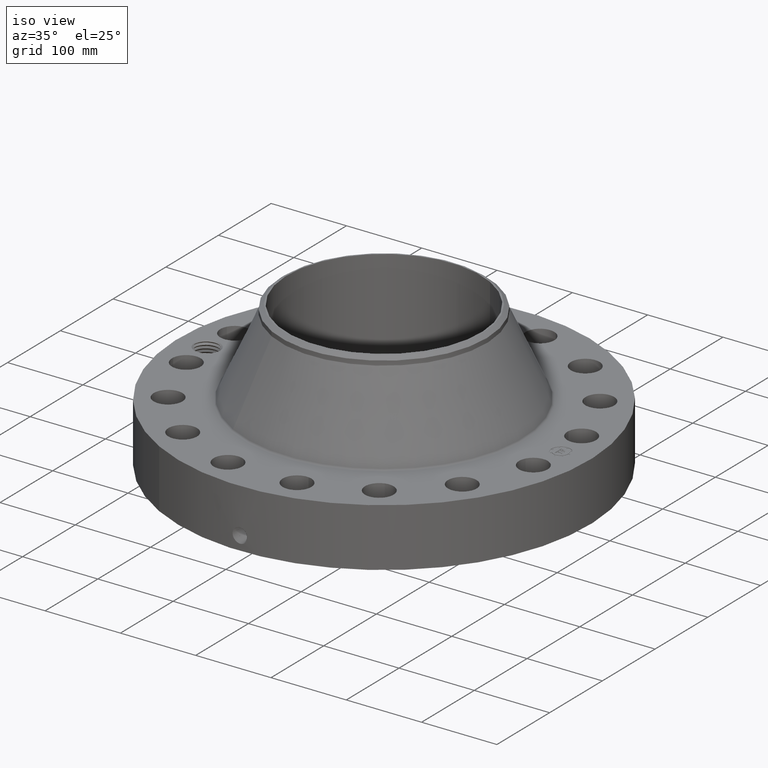
[diagram: clean part render]
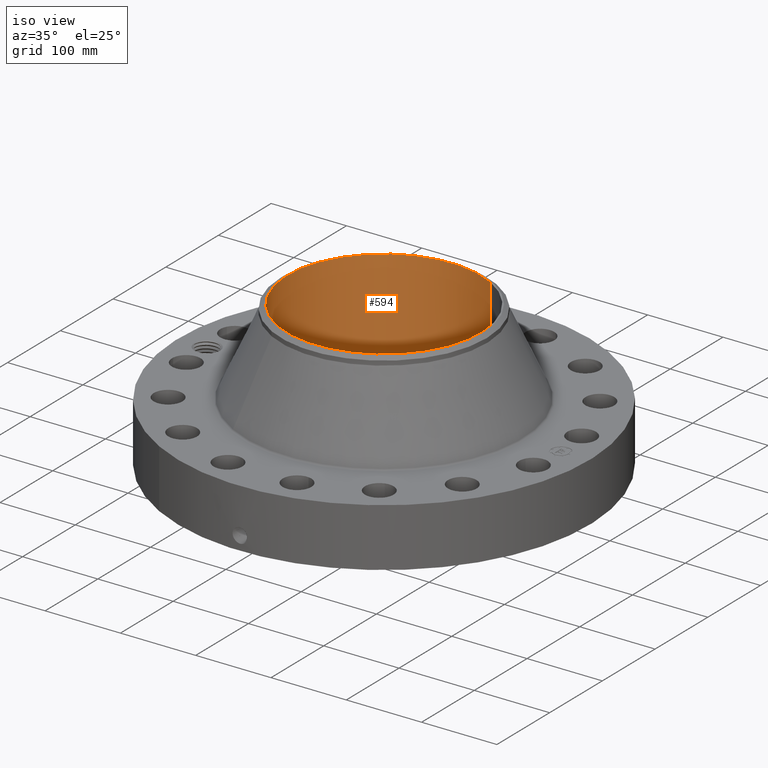
[diagram: same view with one face highlighted and labeled with its STEP entity id]
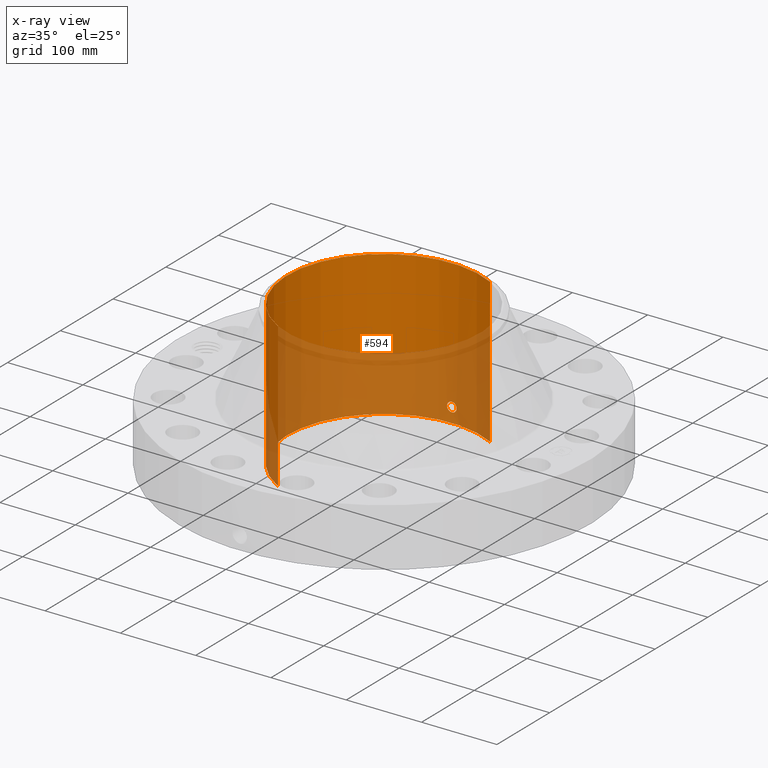
[diagram: x-ray of the same camera — body ghosted, the highlighted face saturated]
A machine part, iso view. The second image highlights one B-rep face of the part: STEP entity #594.
The next image is the same camera in x-ray: the body ghosted, the highlighted face saturated — about 47% of this face is hidden behind the body in this view.
In plain terms, the highlighted cylindrical surface (partial cylindrical patch) has radius 128.727 mm, axis along (0, 0, -1).
Its self-contained STEP definition (entity closure, byte-faithful):
#232=AXIS2_PLACEMENT_3D('Cylinder Axis2P3D',#229,#230,#231) ;
#533=AXIS2_PLACEMENT_3D('Circle Axis2P3D',#531,#532,$) ;
#543=AXIS2_PLACEMENT_3D('Circle Axis2P3D',#541,#542,$) ;
#229=CARTESIAN_POINT('Axis2P3D Location',(0.,0.,3.78100000002)) ;
#238=CARTESIAN_POINT('Vertex',(2.42972862966,4.44758842368,7.56200000003)) ;
#240=CARTESIAN_POINT('Vertex',(-2.42972862966,-4.44758842368,7.56200000003)) ;
#243=CARTESIAN_POINT('Line Origine',(2.42972862966,4.44758842368,3.78100000002)) ;
#247=CARTESIAN_POINT('Vertex',(2.42972862966,4.44758842368,-1.51060266658E-014)) ;
#254=CARTESIAN_POINT('Vertex',(-2.42972862966,-4.44758842368,-1.51060266658E-014)) ;
#257=CARTESIAN_POINT('Line Origine',(-2.42972862966,-4.44758842368,3.78100000002)) ;
#531=CARTESIAN_POINT('Axis2P3D Location',(0.,0.,7.56200000003)) ;
#541=CARTESIAN_POINT('Axis2P3D Location',(0.,0.,-1.56655091349E-014)) ;
#553=CARTESIAN_POINT('Control Point',(0.219395640473,5.06324891282,0.869856384655)) ;
#554=CARTESIAN_POINT('Control Point',(0.206921719486,5.06378942029,0.892689743864)) ;
#555=CARTESIAN_POINT('Control Point',(0.191478259971,5.06442011497,0.913898680403)) ;
#556=CARTESIAN_POINT('Control Point',(0.173345217386,5.06509226609,0.932970239007)) ;
#557=CARTESIAN_POINT('Control Point',(0.112136795125,5.06703633096,0.98244893639)) ;
#558=CARTESIAN_POINT('Control Point',(0.0349822800514,5.06829938306,1.00597344248)) ;
#559=CARTESIAN_POINT('Control Point',(-0.019559894261,5.06839375583,1.00761228124)) ;
#560=CARTESIAN_POINT('Control Point',(-0.124145130375,5.06700352883,0.982470155229)) ;
#561=CARTESIAN_POINT('Control Point',(-0.203189946635,5.06412590489,0.909559205837)) ;
#562=CARTESIAN_POINT('Control Point',(-0.232166968363,5.06270914309,0.863344552312)) ;
#563=CARTESIAN_POINT('Control Point',(-0.25583323828,5.06154277102,0.785188263653)) ;
#564=CARTESIAN_POINT('Control Point',(-0.248295655353,5.0619139393,0.705799642855)) ;
#565=CARTESIAN_POINT('Control Point',(-0.24206157261,5.06222543809,0.679216522199)) ;
#566=CARTESIAN_POINT('Control Point',(-0.232323388934,5.06268874054,0.653807700177)) ;
#567=CARTESIAN_POINT('Control Point',(-0.219395640473,5.06324891282,0.630143615351)) ;
#568=CARTESIAN_POINT('Vertex',(0.219395640473,5.06324891282,0.869856384655)) ;
#570=CARTESIAN_POINT('Vertex',(-0.219395640473,5.06324891282,0.630143615351)) ;
#574=CARTESIAN_POINT('Control Point',(-0.219395640473,5.06324891282,0.630143615351)) ;
#575=CARTESIAN_POINT('Control Point',(-0.206921719499,5.06378942029,0.607310256167)) ;
#576=CARTESIAN_POINT('Control Point',(-0.191478260005,5.06442011497,0.586101319649)) ;
#577=CARTESIAN_POINT('Control Point',(-0.173345217343,5.0650922661,0.567029760965)) ;
#578=CARTESIAN_POINT('Control Point',(-0.112136795101,5.06703633096,0.51755106361)) ;
#579=CARTESIAN_POINT('Control Point',(-0.03498228006,5.06829938306,0.494026557525)) ;
#580=CARTESIAN_POINT('Control Point',(0.0195598942664,5.06839375583,0.492387718764)) ;
#581=CARTESIAN_POINT('Control Point',(0.124145130427,5.06700352883,0.51752984479)) ;
#582=CARTESIAN_POINT('Control Point',(0.20318994671,5.06412590488,0.590440794239)) ;
#583=CARTESIAN_POINT('Control Point',(0.232166968333,5.06270914309,0.636655447594)) ;
#584=CARTESIAN_POINT('Control Point',(0.255833238291,5.06154277102,0.714811736324)) ;
#585=CARTESIAN_POINT('Control Point',(0.24829565535,5.0619139393,0.794200357194)) ;
#586=CARTESIAN_POINT('Control Point',(0.242061572626,5.06222543809,0.820783477766)) ;
#587=CARTESIAN_POINT('Control Point',(0.232323388944,5.06268874054,0.846192299809)) ;
#588=CARTESIAN_POINT('Control Point',(0.219395640473,5.06324891282,0.869856384655)) ;
#230=DIRECTION('Axis2P3D Direction',(0.,0.,-0.0393700787402)) ;
#231=DIRECTION('Axis2P3D XDirection',(-0.0188750212049,-0.0345504945626,0.)) ;
#244=DIRECTION('Vector Direction',(0.,0.,-0.0393700787402)) ;
#258=DIRECTION('Vector Direction',(0.,0.,-0.0393700787402)) ;
#532=DIRECTION('Axis2P3D Direction',(0.,0.,-0.0393700787402)) ;
#542=DIRECTION('Axis2P3D Direction',(0.,0.,-0.0393700787402)) ;
#245=VECTOR('Line Direction',#244,0.0393700787402) ;
#259=VECTOR('Line Direction',#258,0.0393700787402) ;
#547=ORIENTED_EDGE('',*,*,#535,.F.) ;
#548=ORIENTED_EDGE('',*,*,#261,.T.) ;
#549=ORIENTED_EDGE('',*,*,#545,.T.) ;
#550=ORIENTED_EDGE('',*,*,#249,.F.) ;
#591=ORIENTED_EDGE('',*,*,#572,.F.) ;
#592=ORIENTED_EDGE('',*,*,#589,.F.) ;
#593=FACE_BOUND('',#590,.T.) ;
#594=ADVANCED_FACE('PartBody',(#551,#593),#233,.F.) ;
#552=B_SPLINE_CURVE_WITH_KNOTS('',5,(#553,#554,#555,#556,#557,#558,#559,#560,#561,#562,#563,#564,#565,#566,#567),.UNSPECIFIED.,.F.,.U.,(6,3,3,3,6),(0.,4.67405947552,14.0221239129,23.3721121515,28.2162237382),.UNSPECIFIED.) ;
#573=B_SPLINE_CURVE_WITH_KNOTS('',5,(#574,#575,#576,#577,#578,#579,#580,#581,#582,#583,#584,#585,#586,#587,#588),.UNSPECIFIED.,.F.,.U.,(6,3,3,3,6),(0.,4.67405947047,14.0221239072,23.3721121547,28.2162237455),.UNSPECIFIED.) ;
#534=CIRCLE('generated circle',#533,5.06800000002) ;
#544=CIRCLE('generated circle',#543,5.06800000002) ;
#233=CYLINDRICAL_SURFACE('generated cylinder',#232,5.06800000002) ;
#249=EDGE_CURVE('',#239,#248,#246,.T.) ;
#261=EDGE_CURVE('',#241,#255,#260,.T.) ;
#535=EDGE_CURVE('',#241,#239,#534,.T.) ;
#545=EDGE_CURVE('',#255,#248,#544,.T.) ;
#572=EDGE_CURVE('',#569,#571,#552,.T.) ;
#589=EDGE_CURVE('',#571,#569,#573,.T.) ;
#546=EDGE_LOOP('',(#547,#548,#549,#550)) ;
#590=EDGE_LOOP('',(#591,#592)) ;
#551=FACE_OUTER_BOUND('',#546,.T.) ;
#246=LINE('Line',#243,#245) ;
#260=LINE('Line',#257,#259) ;
#239=VERTEX_POINT('',#238) ;
#241=VERTEX_POINT('',#240) ;
#248=VERTEX_POINT('',#247) ;
#255=VERTEX_POINT('',#254) ;
#569=VERTEX_POINT('',#568) ;
#571=VERTEX_POINT('',#570) ;